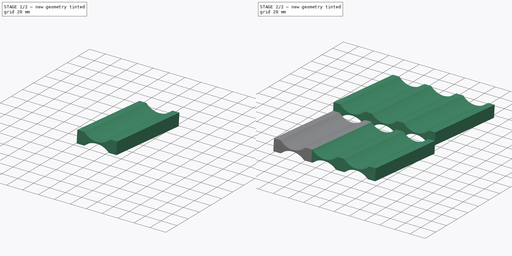
[diagram: build sequence overview — one tinted view per stage of 2, left to right]
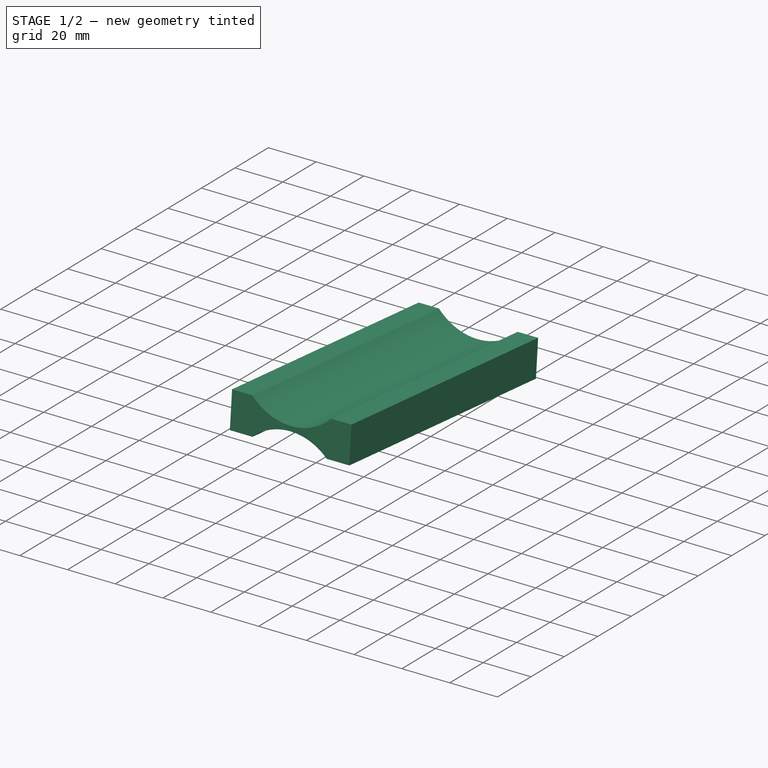
[diagram: stage 1 of 2 — iso view after this stage's code; geometry added in this stage tinted green]
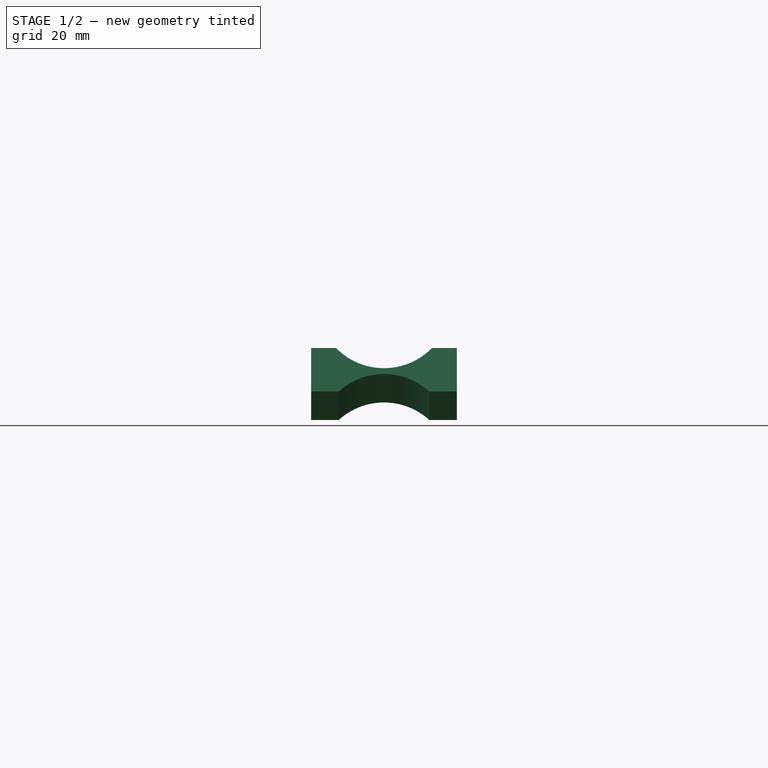
[diagram: stage 1 of 2 — front view after this stage's code; geometry added in this stage tinted green]
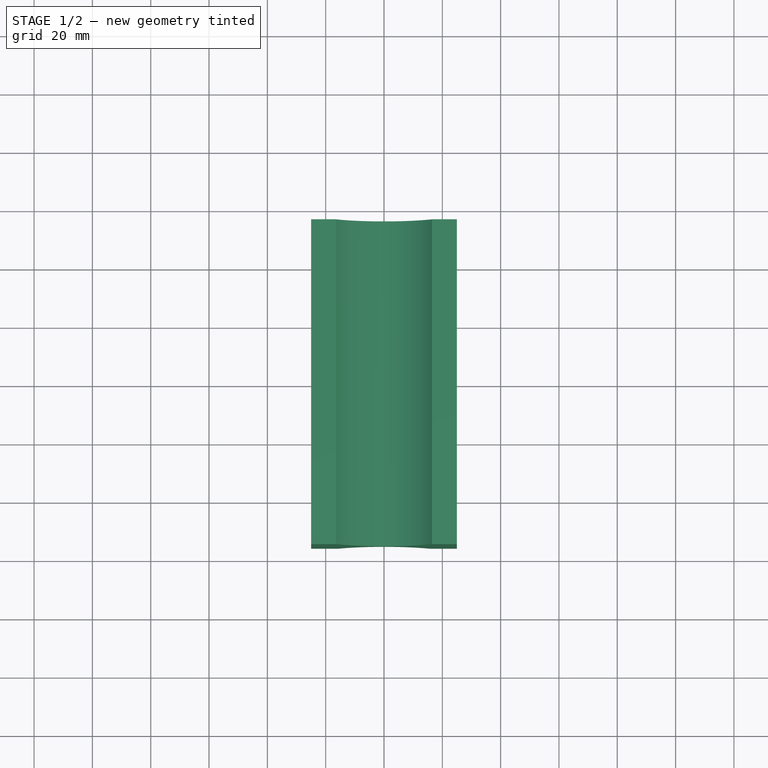
[diagram: stage 1 of 2 — top view after this stage's code; geometry added in this stage tinted green]
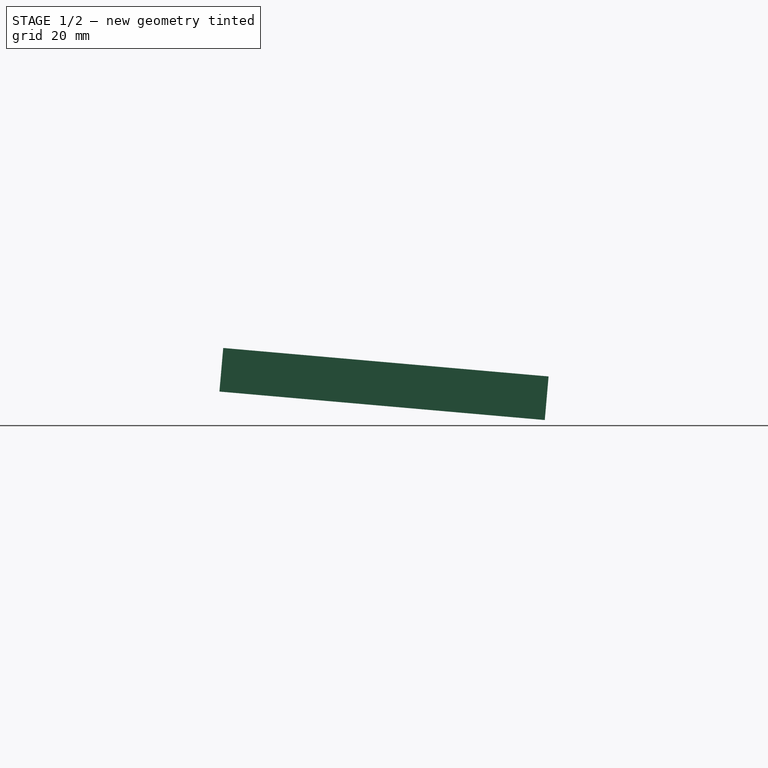
[diagram: stage 1 of 2 — right view after this stage's code; geometry added in this stage tinted green]
FCSTD DOCUMENT  (FreeCAD 2023.131R26244 +5365 (Git))
Label: Spice Bottle Organizer
License: All rights reserved
LicenseURL: http://en.wikipedia.org/wiki/All_rights_reserved
objects: Sketcher::SketchObject×2, PartDesign::LinearPattern×2, Spreadsheet::Sheet×1, PartDesign::Pad×1, PartDesign::Pocket×1, PartDesign::Body×1
note: 17 computed .brp shape members not serialized (recipe doc carries the construction recipe); baked Part::Feature solids carry a one-line shape summary decoded from their .brp

FEATURE [Spreadsheet::Sheet] Spreadsheet  label="Parameters"
  PythonMode = false
  ShowCells = 0
  TreeRank = 1
  cells = A1=Thickness; B1(thickness)=2; A2=Tilt Angle; B2(tilt)=5; A3=Bottle Diameter; B3(bottle_diameter)=46; A4=Bottle Height; B4(bottle_height)=112; A5=Bottle Length; B5(bottle_tile_height)==cos(tilt) * bottle_height; A6=Rows; B6(rows)=2; A7=Columns; B7(columns)=6; D7=Must be multiple of 2; A8=Handle Thickness; B8(handle_thickness)=8; A10=Overall Width; B10(overall_thickness)==bottle_diameter * columns + handle_thickness; A11=Overall Length; B11(overall_length)==bottle_tile_height * rows
FEATURE [Sketcher::SketchObject] Sketch
  ArcFitTolerance = 1e-06
  AttachmentSupport = -> [YZ_Plane]
  ExternalBSplineMaxDegree = 5
  ExternalBSplineTolerance = 0.0001
  FullyConstrained = true
  InternalTolerance = 1e-06
  InvalidShape = false
  MakeInternals = false
  MapMode = 5
  Placement = pos=(0,0,0) rot=(0.57735,0.57735,0.57735;2.0944rad)
  Support = -> [YZ_Plane]
  TreeRank = 12
  ValidateShape = true
  expr: Constraints[0] = <<Parameters>>.tilt
  expr: Constraints[1] = <<Parameters>>.bottle_height
  sketch-geometry (6):
    g0: LineSegment StartX=-55.7869 StartY=9.76144 StartZ=0 EndX=55.7869 EndY=0 EndZ=0
    g1: LineSegment StartX=-54.4796 StartY=24.7044 StartZ=0 EndX=57.0942 EndY=14.9429 EndZ=0
    g2: LineSegment StartX=-54.4796 StartY=24.7044 StartZ=0 EndX=-55.7869 EndY=9.76144 EndZ=0
    g3: LineSegment StartX=57.0942 StartY=14.9429 StartZ=0 EndX=55.7869 EndY=0 EndZ=0
    g4: LineSegment [constr] StartX=-55.7869 StartY=9.76144 StartZ=0 EndX=-55.7869 EndY=0 EndZ=0
    g5: LineSegment [constr] StartX=-55.7869 StartY=0 StartZ=0 EndX=55.7869 EndY=0 EndZ=0
  constraints (16):
    c: Angle(g0,g-1) = 0.0872665
    c: Distance(g0,g0) = 112
    c: Parallel(g0,g1)
    c: Coincident(g2,g1)
    c: Coincident(g2,g0)
    c: Coincident(g3,g1)
    c: Coincident(g3,g0)
    c: Perpendicular(g2,g0)
    c: Distance(g0,g1) = 15
    c: PointOnObject(g0,g-1)
    c: Coincident(g4,g0)
    c: Vertical(g4)
    c: Coincident(g5,g4)
    c: Coincident(g5,g0)
    c: Symmetric(g4,g0,g-2)
    c: Parallel(g2,g3)
FEATURE [PartDesign::Pad] Pad
  AddSubType = 0
  AlongSketchNormal = false
  AutoTaperInnerAngle = true
  CheckUpToFaceLimits = true
  ClaimChildren = false
  Direction = (1,-2e-16,3e-16)
  Fit = 0
  FitJoin = 0
  InnerFit = 0
  InnerFitJoin = 0
  InvalidShape = false
  Length = 25
  Length2 = 25
  Linearize = true
  NewSolid = false
  Profile = -> Sketch
  Suppress = false
  TaperInnerAngle = 0
  TaperInnerAngleRev = 0
  TreeRank = 13
  Type = 4
  ValidateShape = true
  _ProfileBasedVersion = 1
  expr: Length = (<<Parameters>>.bottle_diameter + 2 * <<Parameters>>.thickness) / 2
  expr: Length2 = (<<Parameters>>.bottle_diameter + 2 * <<Parameters>>.thickness) / 2
FEATURE [Sketcher::SketchObject] Sketch001
  ArcFitTolerance = 1e-06
  AttachmentSupport = -> [Pad]
  ExternalBSplineMaxDegree = 5
  ExternalBSplineTolerance = 0.0001
  FullyConstrained = false
  InternalTolerance = 1e-06
  InvalidShape = false
  MakeInternals = false
  MapMode = 5
  Placement = pos=(-1.38e-14,-56.2107,4.9178) rot=(1,0,0;1.48353rad)
  Support = -> [Pad]
  TreeRank = 14
  ValidateShape = true
  expr: Constraints[1] = <<Parameters>>.bottle_diameter
  expr: Constraints[8] = <<Parameters>>.thickness
  sketch-geometry (4):
    g0: Circle CenterX=0 CenterY=35.9096 CenterZ=0 NormalX=0 NormalY=0 NormalZ=1 AngleXU=0 Radius=23
    g1: Circle CenterX=0 CenterY=-12.0904 CenterZ=0 NormalX=0 NormalY=0 NormalZ=1 AngleXU=0 Radius=23
    g2: GeomPoint [constr] X=0 Y=12.9096 Z=0
    g3: GeomPoint [constr] X=0 Y=10.9096 Z=0
  constraints (9):
    c: PointOnObject(g0,g-2)
    c: Diameter(g0) = 46
    c: PointOnObject(g1,g-2)
    c: Equal(g0,g1)
    c: PointOnObject(g2,g0)
    c: PointOnObject(g3,g1)
    c: PointOnObject(g2,g-2)
    c: PointOnObject(g3,g-2)
    c: DistanceY(g3,g2) = 2
FEATURE [PartDesign::Pocket] Pocket
  AddSubType = 1
  AutoTaperInnerAngle = true
  BaseFeature = -> Pad
  CheckUpToFaceLimits = true
  ClaimChildren = false
  Fit = 0
  FitJoin = 0
  InnerFit = 0
  InnerFitJoin = 0
  InvalidShape = false
  Length = 112
  Length2 = 100
  Linearize = true
  NewSolid = false
  Profile = -> Sketch001
  Suppress = false
  TaperInnerAngle = 0
  TaperInnerAngleRev = 0
  TreeRank = 15
  Type = 0
  ValidateShape = true
  _ProfileBasedVersion = 1
  _Version = 1
  expr: Length = <<Parameters>>.bottle_height
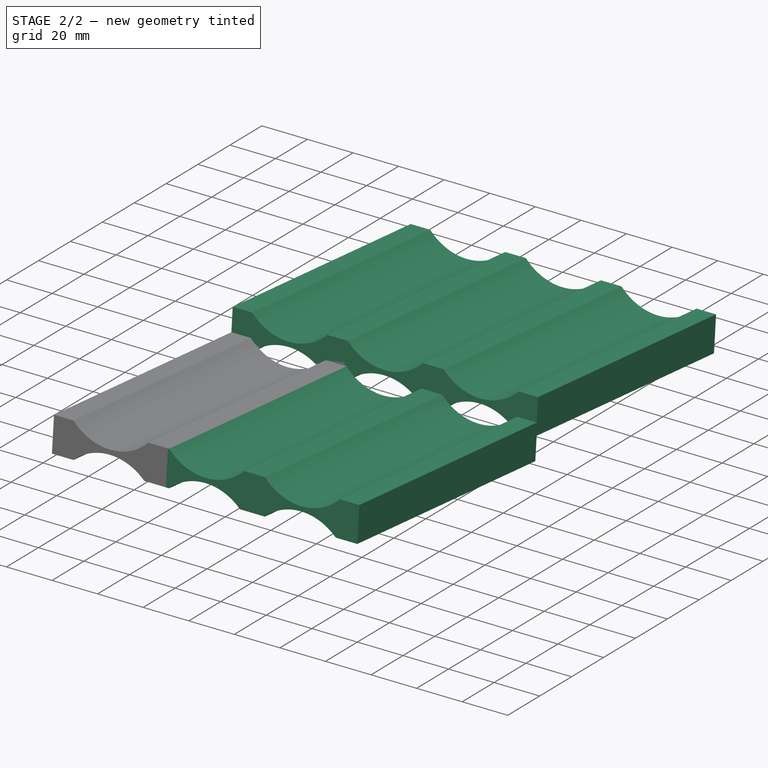
[diagram: stage 2 of 2 — iso view after this stage's code; geometry added in this stage tinted green]
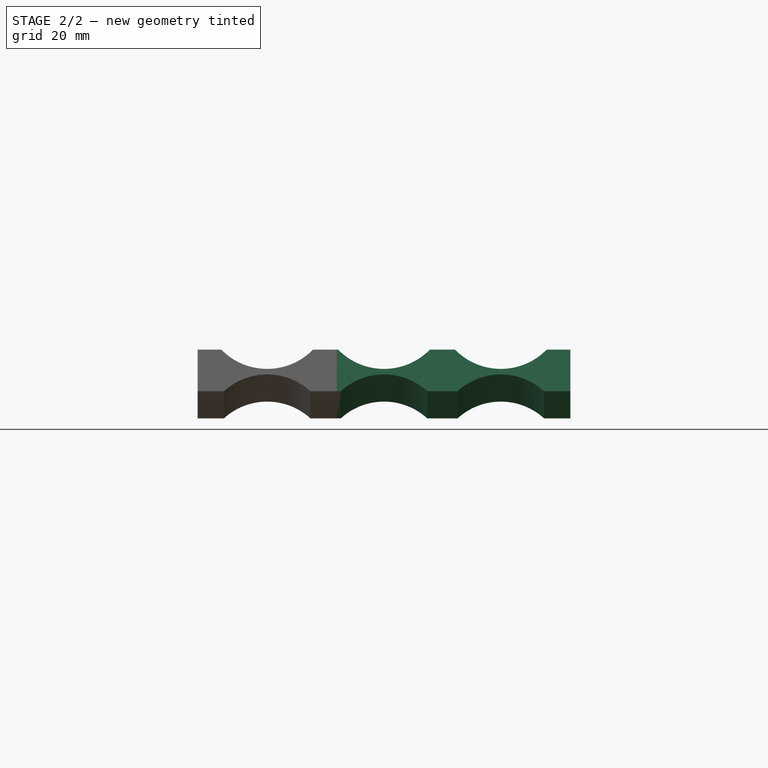
[diagram: stage 2 of 2 — front view after this stage's code; geometry added in this stage tinted green]
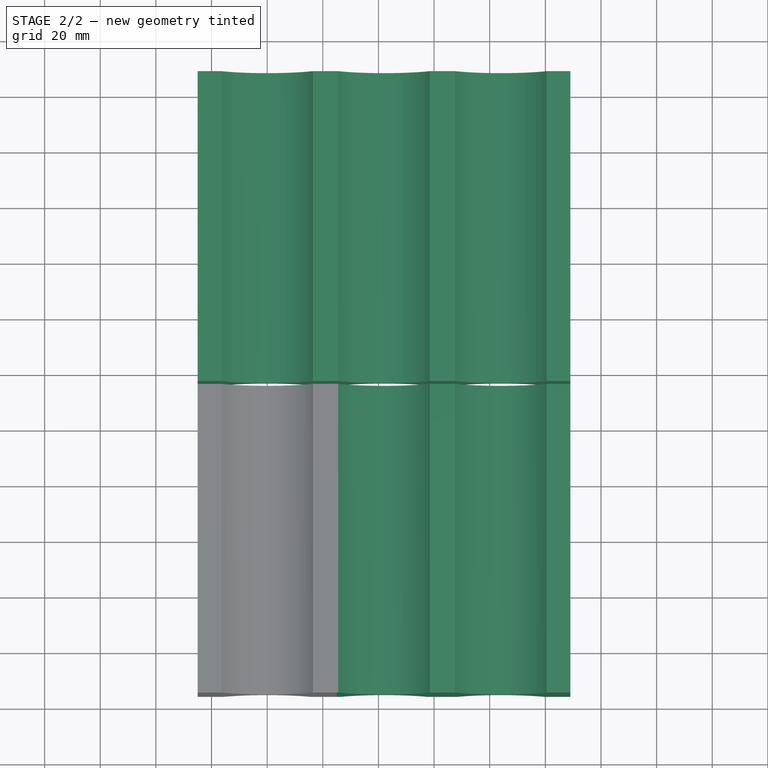
[diagram: stage 2 of 2 — top view after this stage's code; geometry added in this stage tinted green]
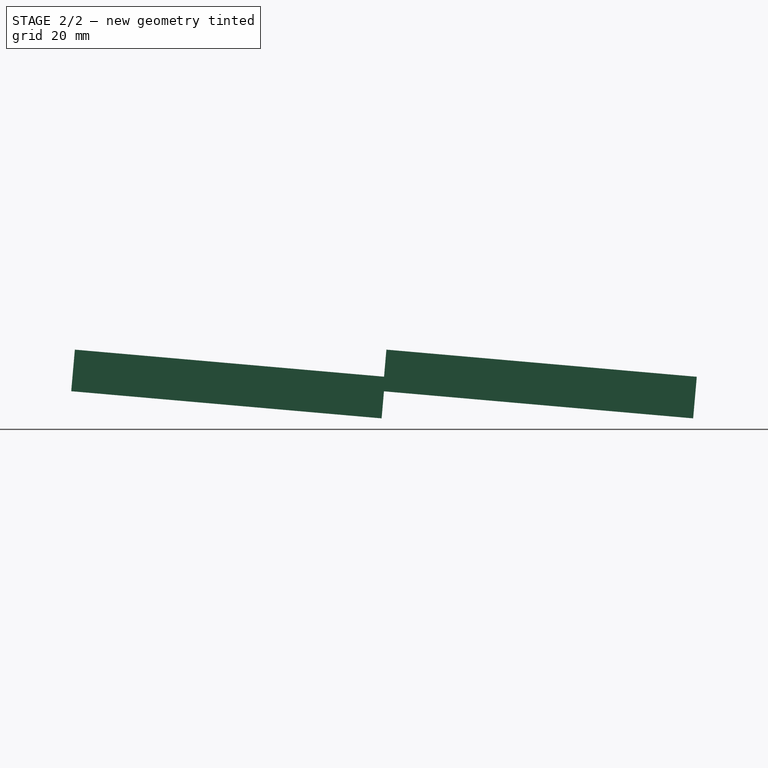
[diagram: stage 2 of 2 — right view after this stage's code; geometry added in this stage tinted green]
FEATURE [PartDesign::LinearPattern] LinearPattern001
  AddSubType = 0
  BaseFeature = -> Pocket
  CopyShape = false
  Direction = -> Sketch [H_Axis]
  InvalidShape = false
  Length = 112
  NewSolid = false
  Occurrences = 2
  OriginalSubs = -> [Pad,Pocket]
  Originals = -> [Pad,Pocket]
  ParallelTransform = true
  SubTransform = true
  Suppress = false
  TreeRank = 18
  ValidateShape = true
  _Version = 3
  expr: Length = <<Parameters>>.bottle_height * (<<Parameters>>.rows - 1)
  expr: Occurrences = <<Parameters>>.rows
FEATURE [PartDesign::LinearPattern] LinearPattern
  AddSubType = 0
  BaseFeature = -> LinearPattern001
  CopyShape = false
  Direction = -> X_Axis
  InvalidShape = false
  Length = 84
  NewSolid = false
  Occurrences = 3
  OriginalSubs = -> [LinearPattern001,Pocket,Pad]
  Originals = -> [LinearPattern001,Pocket,Pad]
  ParallelTransform = true
  SubTransform = true
  Suppress = false
  TreeRank = 19
  ValidateShape = true
  _Version = 3
  expr: Length = (<<Parameters>>.bottle_diameter - 2 * <<Parameters>>.thickness) * (<<Parameters>>.columns / 2 - 1)
  expr: Occurrences = <<Parameters>>.columns / 2
FEATURE [PartDesign::Body] Body  label="Attept1"
  AutoGroupSolids = false
  ClaimAllChildren = false
  ExportMode = 0
  Group = -> [Sketch,Pad,Sketch001,Pocket,LinearPattern001,LinearPattern]
  InvalidShape = false
  Origin = -> Origin
  Tip = -> LinearPattern
  TreeRank = 16
  ValidateShape = true
  _ExportChildren = -> [Pad,Pocket,LinearPattern001,LinearPattern]
  _GroupVersion = 1
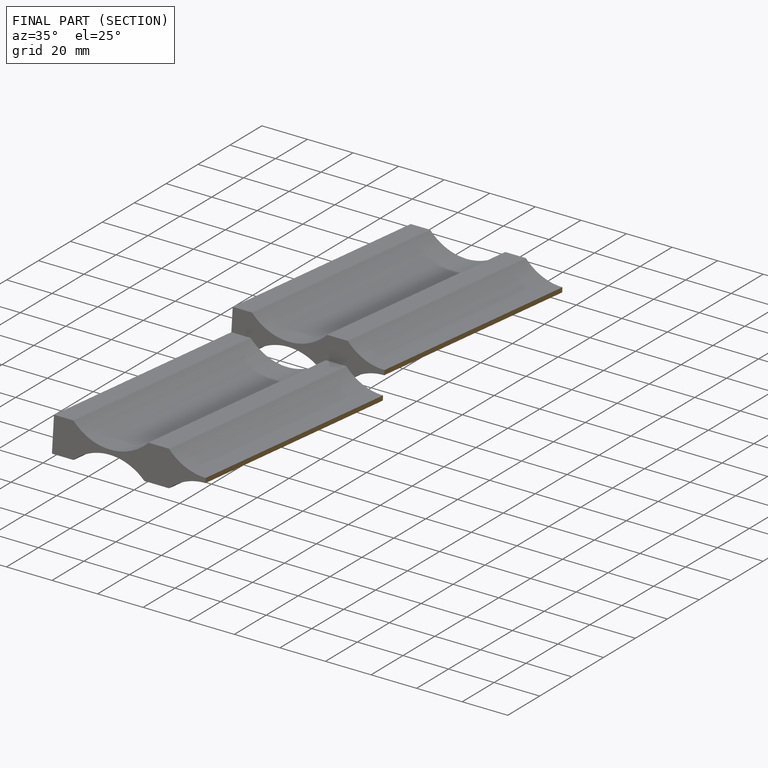
[diagram: finished part — half-section view (interior)]
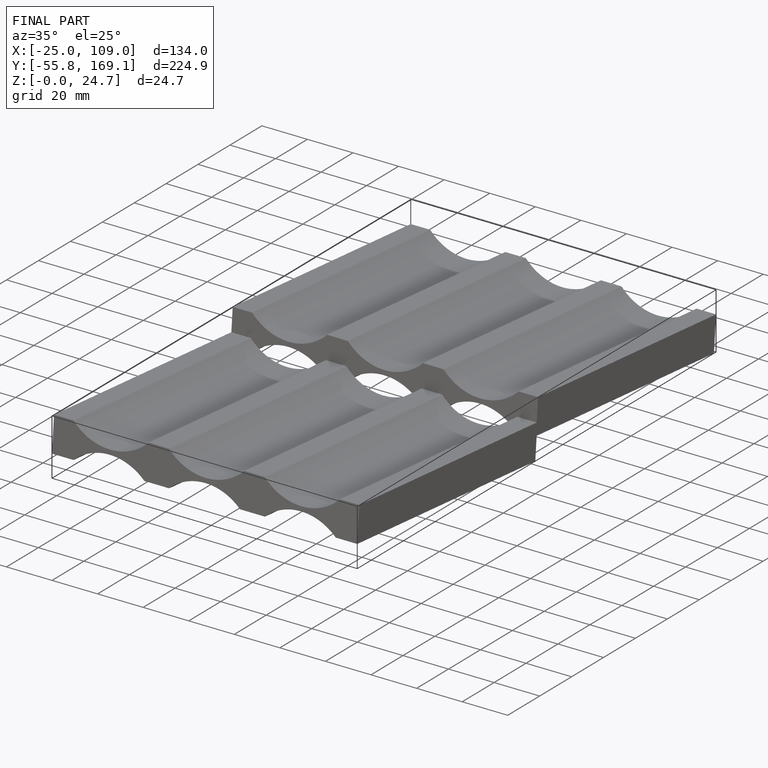
[diagram: finished part — iso view with bounding-box wireframe]
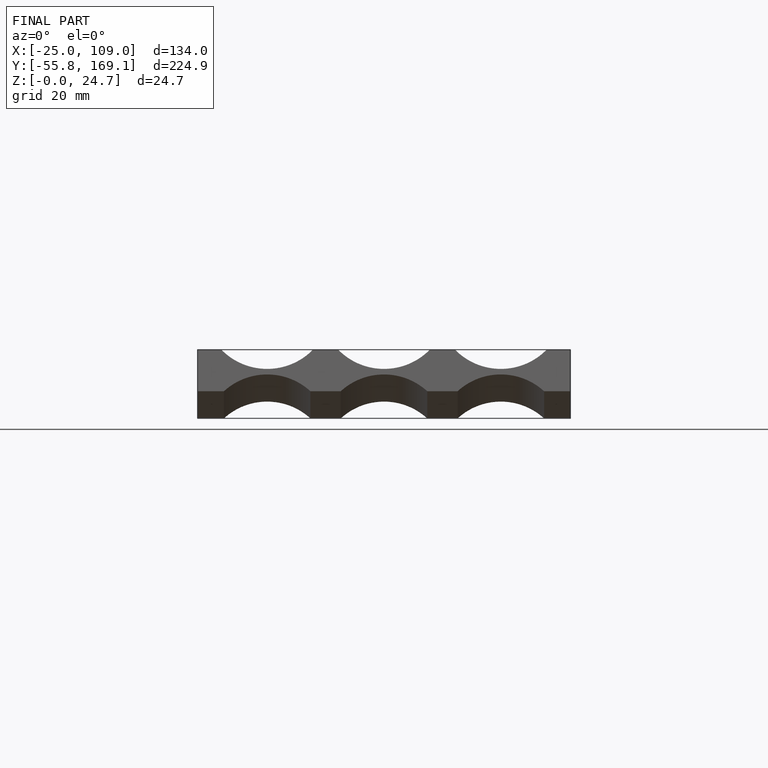
[diagram: finished part — front view with bounding-box wireframe]
